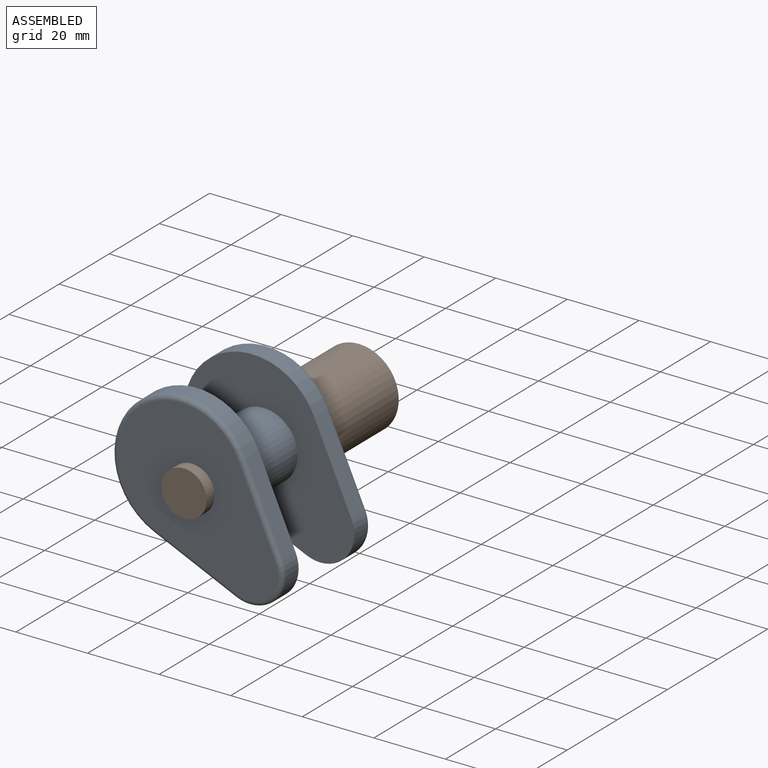
[diagram: assembled view]
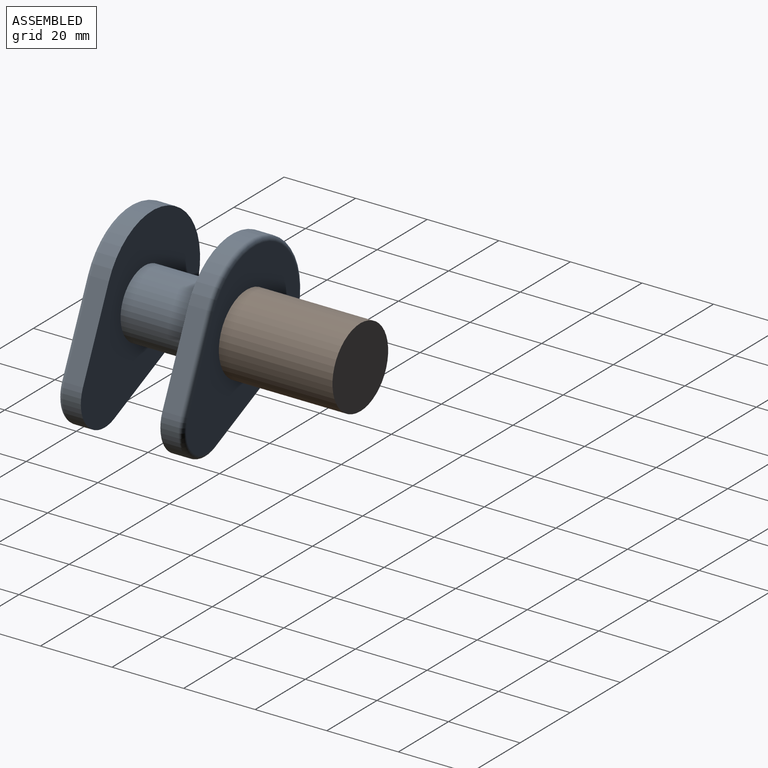
[diagram: assembled view, second angle]
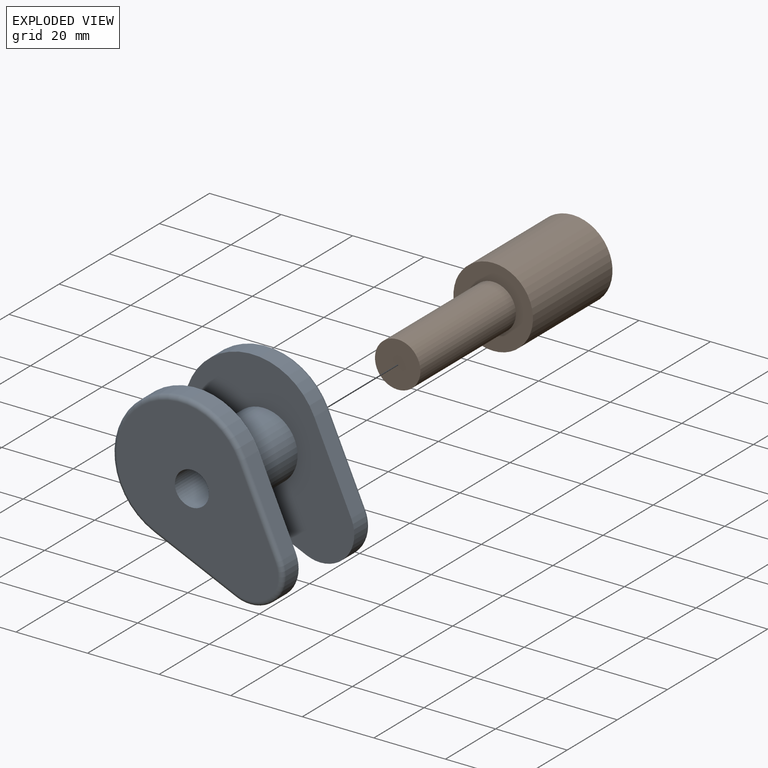
[diagram: exploded view]
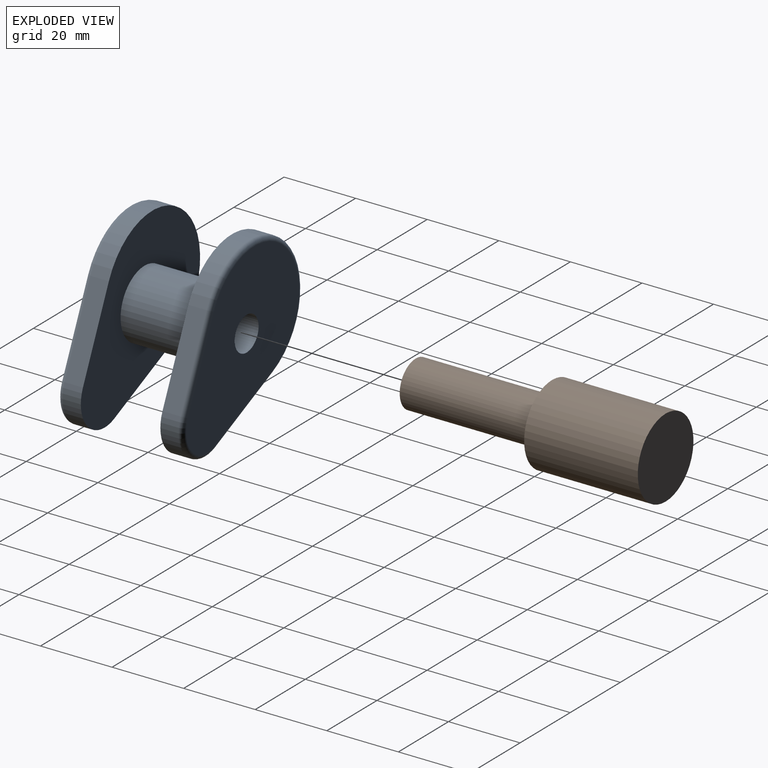
[diagram: exploded view, second angle]
ASSEMBLY  parts=2 mates=2
PART A: 22 faces, bbox 49.9x34.9x49.9 mm
  f0: cylinder r=9.53mm len=22.23mm, axis (0,1,0), area 1330.1mm2, adj f5,f12
  f1: plane 22.91x10.34mm, normal (0.91,0,0.41), area 127.7mm2, adj f2,f4,f5,f18
  f2: cylinder r=19.05mm len=36.44mm, axis (0,1,0), area 374.3mm2, adj f1,f3,f5,f20
  f3: plane 22.94x10.26mm, normal (-0.41,0,-0.91), area 127.7mm2, adj f2,f4,f5,f21
  f4: cylinder r=9.5mm len=13.41mm, axis (0,1,0), area 116.6mm2, adj f1,f3,f5,f19
  f5: plane 47.6x47.53mm, normal (0,-1,0), area 1243.5mm2, adj f0,f1,f2,f3,f4
  f6: plane 45.06x44.99mm, normal (0,1,0), area 1275.7mm2, adj f13,f18,f19,f20,f21
  f7: plane 22.91x10.34mm, normal (0.91,0,0.41), area 127.7mm2, adj f8,f10,f12,f14
  f8: cylinder r=19.05mm len=36.44mm, axis (0,1,0), area 374.3mm2, adj f7,f9,f12,f16
  f9: plane 22.94x10.26mm, normal (-0.41,0,-0.91), area 127.7mm2, adj f8,f10,f12,f17
  f10: cylinder r=9.5mm len=13.41mm, axis (0,1,0), area 116.6mm2, adj f7,f9,f12,f15
  f11: plane 45.06x44.99mm, normal (0,-1,0), area 1275.7mm2, adj f13,f14,f15,f16,f17
  f12: plane 47.6x47.53mm, normal (0,1,0), area 1243.5mm2, adj f0,f7,f8,f9,f10
  f13: cylinder r=4.76mm len=34.93mm, axis (0,-1,0), area 1045.1mm2, adj f6,f11
  f14: cylinder r=1.27mm len=23.43mm, axis (0.41,0,-0.91), area 50.1mm2, adj f7,f11,f15,f16
  f15: torus R=8.23mm, axis (0,-1,0), area 43.6mm2, adj f10,f11,f14,f17
  f16: torus R=17.78mm, axis (0,-1,0), area 143.4mm2, adj f8,f11,f14,f17
  f17: cylinder r=1.27mm len=23.46mm, axis (-0.91,0,0.41), area 50.1mm2, adj f9,f11,f15,f16
  f18: cylinder r=1.27mm len=23.43mm, axis (-0.41,0,0.91), area 50.1mm2, adj f1,f6,f19,f20
  f19: torus R=8.23mm, axis (0,-1,0), area 43.6mm2, adj f4,f6,f18,f21
  f20: torus R=17.78mm, axis (0,-1,0), area 143.4mm2, adj f2,f6,f18,f21
  f21: cylinder r=1.27mm len=23.46mm, axis (0.91,0,-0.41), area 50.1mm2, adj f3,f6,f19,f20
PART B: 5 faces, bbox 22.2x69.9x22.2 mm
  f0: cylinder r=6.35mm len=38.1mm, axis (0,1,0), area 1520.1mm2, adj f1,f4
  f1: plane 12.7x12.7mm, normal (0,-1,0), area 126.7mm2, adj f0
  f2: cylinder r=11.11mm len=31.75mm, axis (0,-1,0), area 2216.8mm2, adj f3,f4
  f3: plane 22.23x22.23mm, normal (0,1,0), area 387.9mm2, adj f2
  f4: plane 22.23x22.23mm, normal (0,-1,0), area 261.3mm2, adj f0,f2
PLACE A t=(-72.26,-28.6,-23.49)mm fixed
PLACE B t=(-78.61,-25.43,-17.14)mm
MATE planar B.f2 <-> A.f6  axis (0,-1,0) through (-78.61,-25.43,-17.14)mm
MATE slider A.f0 <-> B.f0  axis (0,-1,0) through (-78.61,-60.35,-17.14)mm
